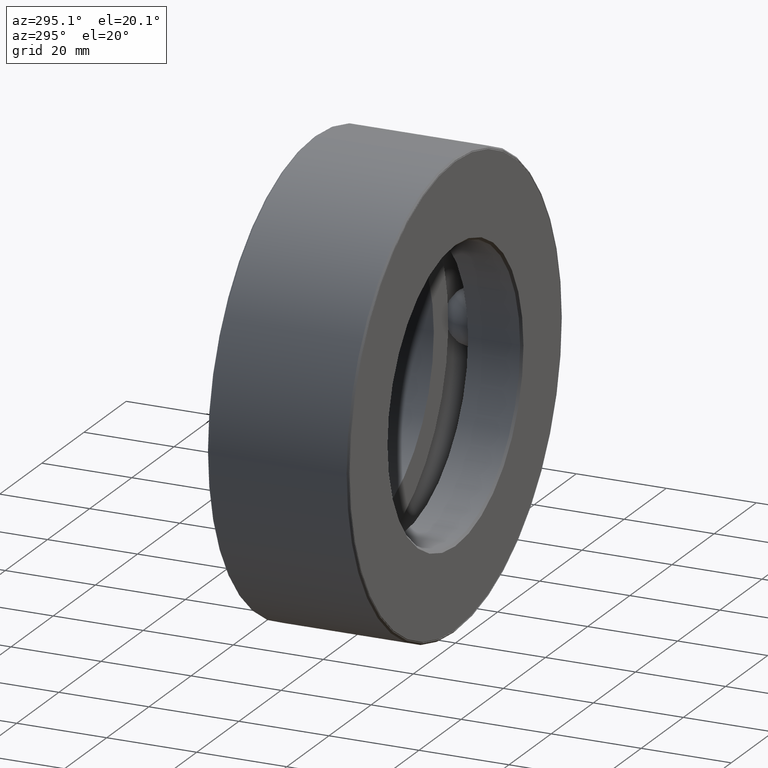
[diagram: clean part render]
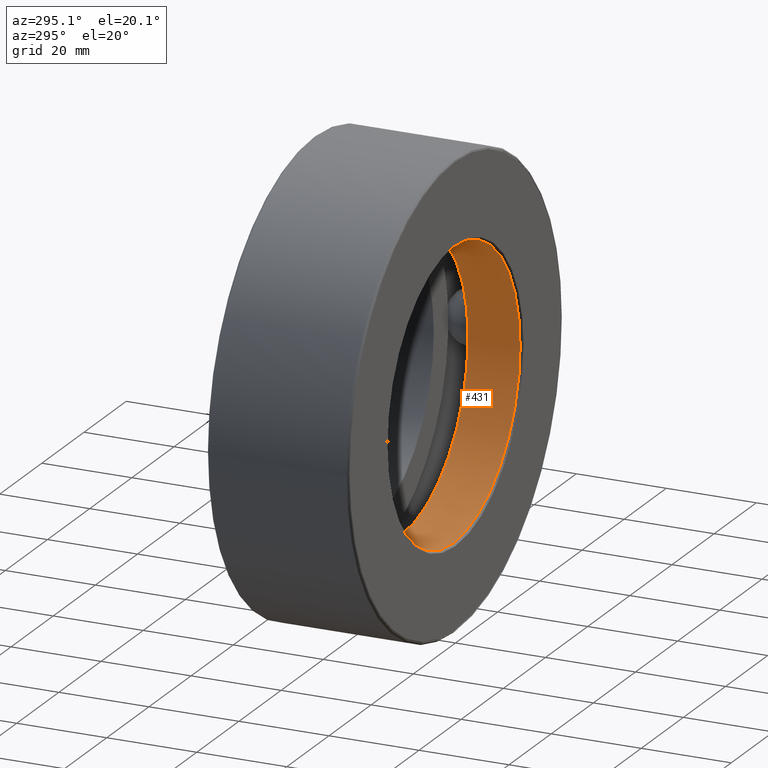
[diagram: same view with one face highlighted and labeled with its STEP entity id]
A machine part, auxiliary view. The second image highlights one B-rep face of the part: STEP entity #431.
In plain terms, the highlighted cylindrical surface (bore or boss wall) has radius 31.75 mm, axis along (-0, 1, -0).
Its self-contained STEP definition (entity closure, byte-faithful):
#23 = CIRCLE ( 'NONE', #336, 1.250000000000000000 ) ;
#88 = AXIS2_PLACEMENT_3D ( 'NONE', #179, #221, #542 ) ;
#104 = ORIENTED_EDGE ( 'NONE', *, *, #416, .T. ) ;
#179 = CARTESIAN_POINT ( 'NONE',  ( 0.0000000000000000000, 0.02000000000000019800, 0.0000000000000000000 ) ) ;
#197 = CIRCLE ( 'NONE', #88, 1.249999999999999800 ) ;
#218 = CARTESIAN_POINT ( 'NONE',  ( 0.0000000000000000000, 0.0000000000000000000, 0.0000000000000000000 ) ) ;
#221 = DIRECTION ( 'NONE',  ( -0.0000000000000000000, 1.000000000000000000, -0.0000000000000000000 ) ) ;
#231 = CYLINDRICAL_SURFACE ( 'NONE', #549, 1.250000000000000000 ) ;
#263 = DIRECTION ( 'NONE',  ( -0.0000000000000000000, 1.000000000000000000, -0.0000000000000000000 ) ) ;
#331 = CARTESIAN_POINT ( 'NONE',  ( 0.0000000000000000000, 0.4750000000000002600, 0.0000000000000000000 ) ) ;
#336 = AXIS2_PLACEMENT_3D ( 'NONE', #331, #462, #464 ) ;
#352 = VERTEX_POINT ( 'NONE', #435 ) ;
#374 = EDGE_LOOP ( 'NONE', ( #460 ) ) ;
#404 = EDGE_CURVE ( 'NONE', #526, #526, #197, .T. ) ;
#416 = EDGE_CURVE ( 'NONE', #352, #352, #23, .T. ) ;
#428 = FACE_OUTER_BOUND ( 'NONE', #438, .T. ) ;
#431 = ADVANCED_FACE ( 'NONE', ( #595, #428 ), #231, .F. ) ;
#435 = CARTESIAN_POINT ( 'NONE',  ( 0.0000000000000000000, 0.4750000000000002600, 1.250000000000000000 ) ) ;
#438 = EDGE_LOOP ( 'NONE', ( #104 ) ) ;
#460 = ORIENTED_EDGE ( 'NONE', *, *, #404, .F. ) ;
#462 = DIRECTION ( 'NONE',  ( -0.0000000000000000000, 1.000000000000000000, -0.0000000000000000000 ) ) ;
#464 = DIRECTION ( 'NONE',  ( 0.0000000000000000000, 0.0000000000000000000, 1.000000000000000000 ) ) ;
#480 = CARTESIAN_POINT ( 'NONE',  ( 0.0000000000000000000, 0.02000000000000019800, 1.249999999999999800 ) ) ;
#526 = VERTEX_POINT ( 'NONE', #480 ) ;
#542 = DIRECTION ( 'NONE',  ( 0.0000000000000000000, 0.0000000000000000000, 1.000000000000000000 ) ) ;
#549 = AXIS2_PLACEMENT_3D ( 'NONE', #218, #263, #600 ) ;
#595 = FACE_OUTER_BOUND ( 'NONE', #374, .T. ) ;
#600 = DIRECTION ( 'NONE',  ( 0.0000000000000000000, 0.0000000000000000000, 1.000000000000000000 ) ) ;